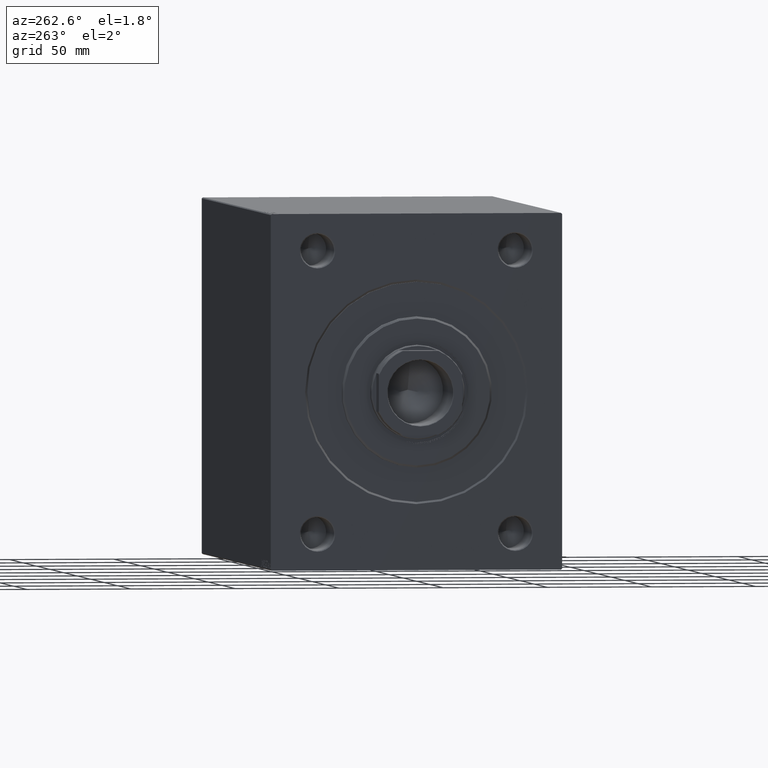
[diagram: clean part render]
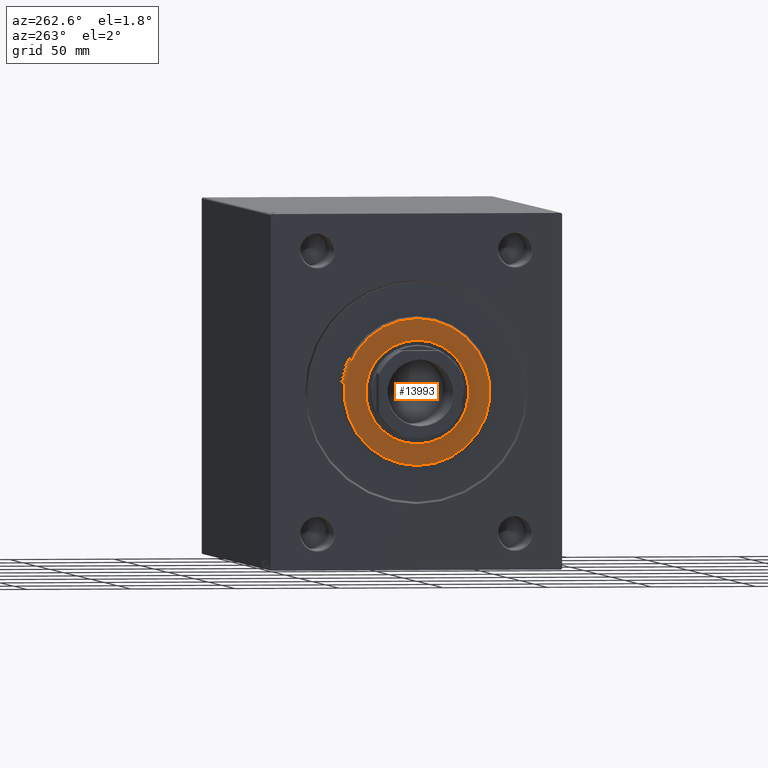
[diagram: same view with one face highlighted and labeled with its STEP entity id]
A machine part, auxiliary view. The second image highlights one B-rep face of the part: STEP entity #13993.
In plain terms, the highlighted planar face has unit normal (-1, 0, 0).
Its self-contained STEP definition (entity closure, byte-faithful):
#1460 = AXIS2_PLACEMENT_3D ( 'NONE', #24928, #7858, #21568 ) ;
#2458 = DIRECTION ( 'NONE',  ( 0.000000000000000000, 0.000000000000000000, -1.000000000000000000 ) ) ;
#2940 = ORIENTED_EDGE ( 'NONE', *, *, #43351, .F. ) ;
#2969 = AXIS2_PLACEMENT_3D ( 'NONE', #19529, #16801, #2458 ) ;
#6443 = AXIS2_PLACEMENT_3D ( 'NONE', #17783, #7915, #11051 ) ;
#7687 = PLANE ( 'NONE',  #6443 ) ;
#7858 = DIRECTION ( 'NONE',  ( 1.000000000000000000, -0.000000000000000000, 0.000000000000000000 ) ) ;
#7915 = DIRECTION ( 'NONE',  ( 1.000000000000000000, -0.000000000000000000, 0.000000000000000000 ) ) ;
#9693 = CARTESIAN_POINT ( 'NONE',  ( 3.000000000000000000, 4.347496136973104859E-15, -35.00000000000002842 ) ) ;
#9760 = DIRECTION ( 'NONE',  ( 0.000000000000000000, 0.000000000000000000, -1.000000000000000000 ) ) ;
#10825 = FACE_BOUND ( 'NONE', #34464, .T. ) ;
#11051 = DIRECTION ( 'NONE',  ( 0.000000000000000000, 0.000000000000000000, -1.000000000000000000 ) ) ;
#11803 = CARTESIAN_POINT ( 'NONE',  ( 3.000000000000000000, 0.000000000000000000, 35.00000000000002842 ) ) ;
#13631 = CARTESIAN_POINT ( 'NONE',  ( 3.000000000000000000, 0.000000000000000000, 0.000000000000000000 ) ) ;
#13679 = VERTEX_POINT ( 'NONE', #27075 ) ;
#13993 = ADVANCED_FACE ( 'NONE', ( #18010, #10825 ), #7687, .T. ) ;
#15740 = VERTEX_POINT ( 'NONE', #31356 ) ;
#15857 = VERTEX_POINT ( 'NONE', #9693 ) ;
#16801 = DIRECTION ( 'NONE',  ( 1.000000000000000000, 0.000000000000000000, 0.000000000000000000 ) ) ;
#17783 = CARTESIAN_POINT ( 'NONE',  ( 3.000000000000000000, 0.000000000000000000, 0.000000000000000000 ) ) ;
#18010 = FACE_OUTER_BOUND ( 'NONE', #31662, .T. ) ;
#19529 = CARTESIAN_POINT ( 'NONE',  ( 3.000000000000000000, 0.000000000000000000, 0.000000000000000000 ) ) ;
#20739 = CIRCLE ( 'NONE', #43017, 24.75000000000000355 ) ;
#21568 = DIRECTION ( 'NONE',  ( 0.000000000000000000, 0.000000000000000000, -1.000000000000000000 ) ) ;
#21674 = EDGE_CURVE ( 'NONE', #28403, #15857, #28083, .T. ) ;
#23766 = DIRECTION ( 'NONE',  ( 0.000000000000000000, 0.000000000000000000, -1.000000000000000000 ) ) ;
#23925 = CARTESIAN_POINT ( 'NONE',  ( 3.000000000000000000, 0.000000000000000000, 0.000000000000000000 ) ) ;
#24928 = CARTESIAN_POINT ( 'NONE',  ( 3.000000000000000000, 0.000000000000000000, 0.000000000000000000 ) ) ;
#27059 = DIRECTION ( 'NONE',  ( 1.000000000000000000, 0.000000000000000000, 0.000000000000000000 ) ) ;
#27075 = CARTESIAN_POINT ( 'NONE',  ( 3.000000000000000000, 3.031000827889699650E-15, 24.75000000000000355 ) ) ;
#27783 = DIRECTION ( 'NONE',  ( 1.000000000000000000, -0.000000000000000000, 0.000000000000000000 ) ) ;
#28083 = CIRCLE ( 'NONE', #32374, 35.00000000000002842 ) ;
#28403 = VERTEX_POINT ( 'NONE', #11803 ) ;
#31016 = ORIENTED_EDGE ( 'NONE', *, *, #21674, .T. ) ;
#31356 = CARTESIAN_POINT ( 'NONE',  ( 3.000000000000000000, 0.000000000000000000, -24.75000000000000355 ) ) ;
#31589 = ORIENTED_EDGE ( 'NONE', *, *, #37433, .T. ) ;
#31662 = EDGE_LOOP ( 'NONE', ( #31016, #31589 ) ) ;
#32315 = CIRCLE ( 'NONE', #1460, 35.00000000000002842 ) ;
#32374 = AXIS2_PLACEMENT_3D ( 'NONE', #13631, #27783, #23766 ) ;
#33007 = EDGE_CURVE ( 'NONE', #13679, #15740, #20739, .T. ) ;
#34464 = EDGE_LOOP ( 'NONE', ( #2940, #41884 ) ) ;
#36788 = CIRCLE ( 'NONE', #2969, 24.75000000000000355 ) ;
#37433 = EDGE_CURVE ( 'NONE', #15857, #28403, #32315, .T. ) ;
#41884 = ORIENTED_EDGE ( 'NONE', *, *, #33007, .F. ) ;
#43017 = AXIS2_PLACEMENT_3D ( 'NONE', #23925, #27059, #9760 ) ;
#43351 = EDGE_CURVE ( 'NONE', #15740, #13679, #36788, .T. ) ;